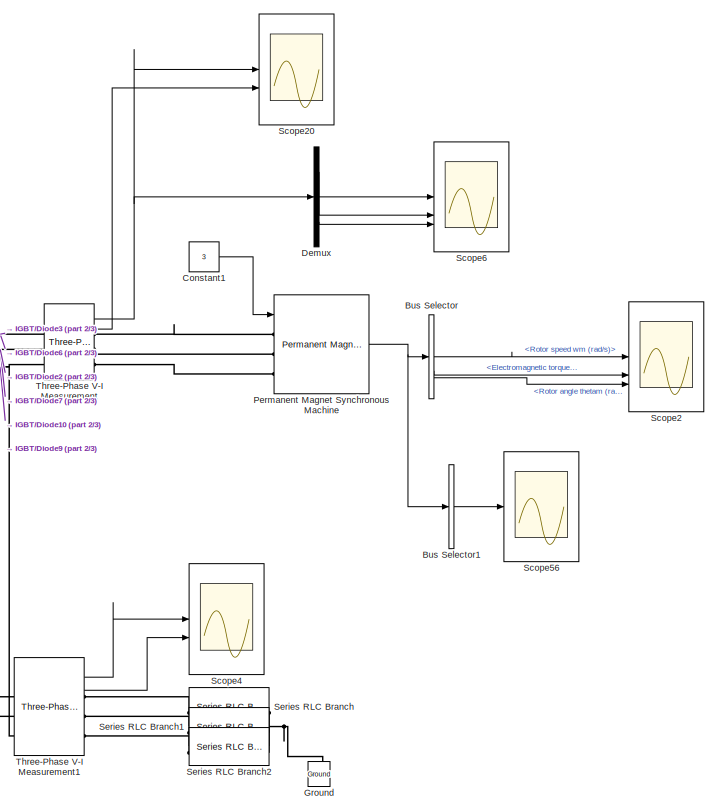
[diagram: root canvas - part 1/3, top right region]
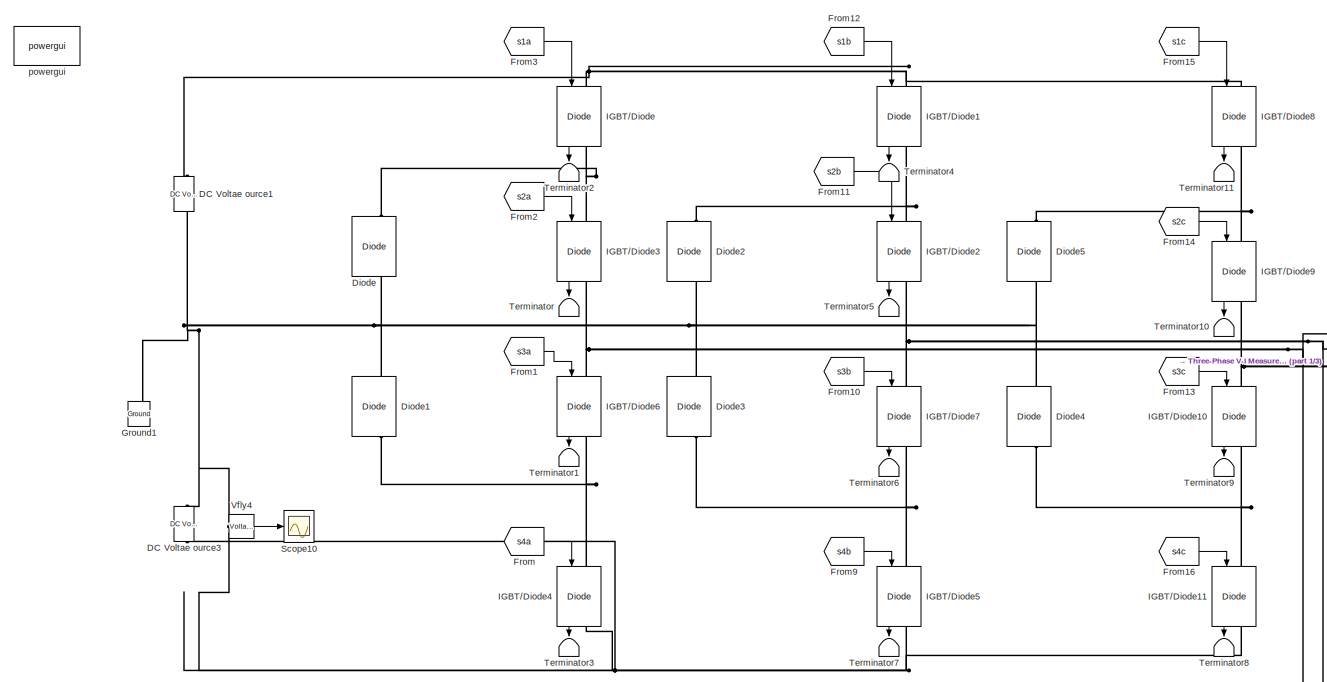
[diagram: root canvas - part 2/3, top left region]
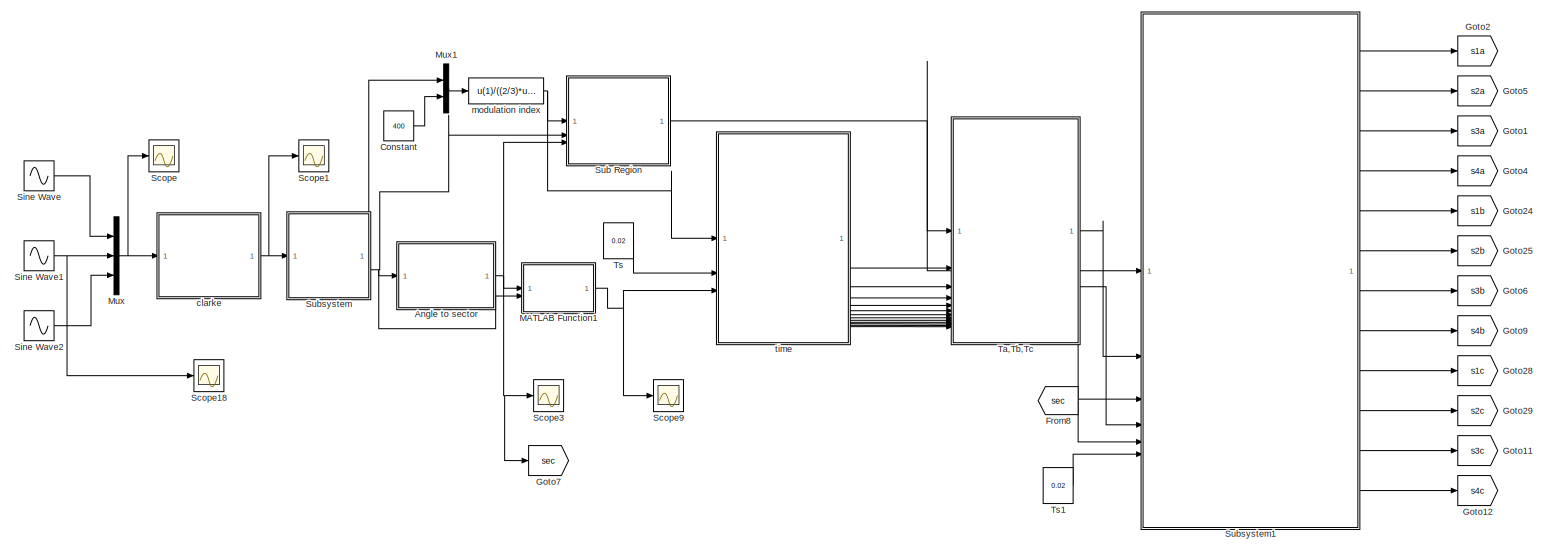
[diagram: root canvas - part 3/3, full width, bottom band]
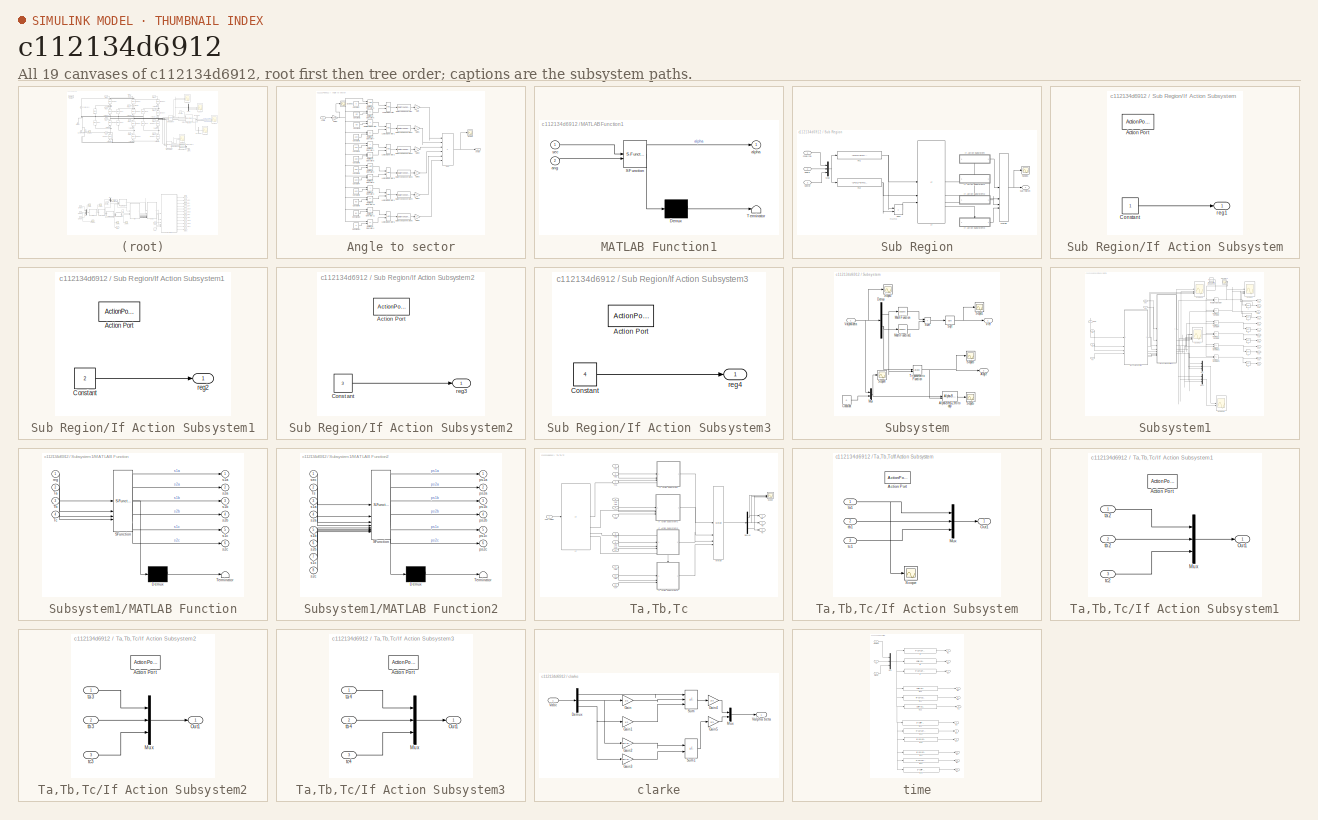
[diagram: thumbnail index - all 19 canvases of the model, root first then tree order]
MODEL slx_c112134d6912
KIND model
CONFIG AbsTol = auto
CONFIG EnableMultiTasking = on
CONFIG FixedStep = 1e-5
CONFIG MaxStep = auto
CONFIG MinStep = auto
CONFIG RelTol = 1e-4
CONFIG SampleTimeConstraint = Unconstrained
CONFIG SolverName = VariableStepAuto
CONFIG StartTime = 0.0
CONFIG StopTime = 0.3
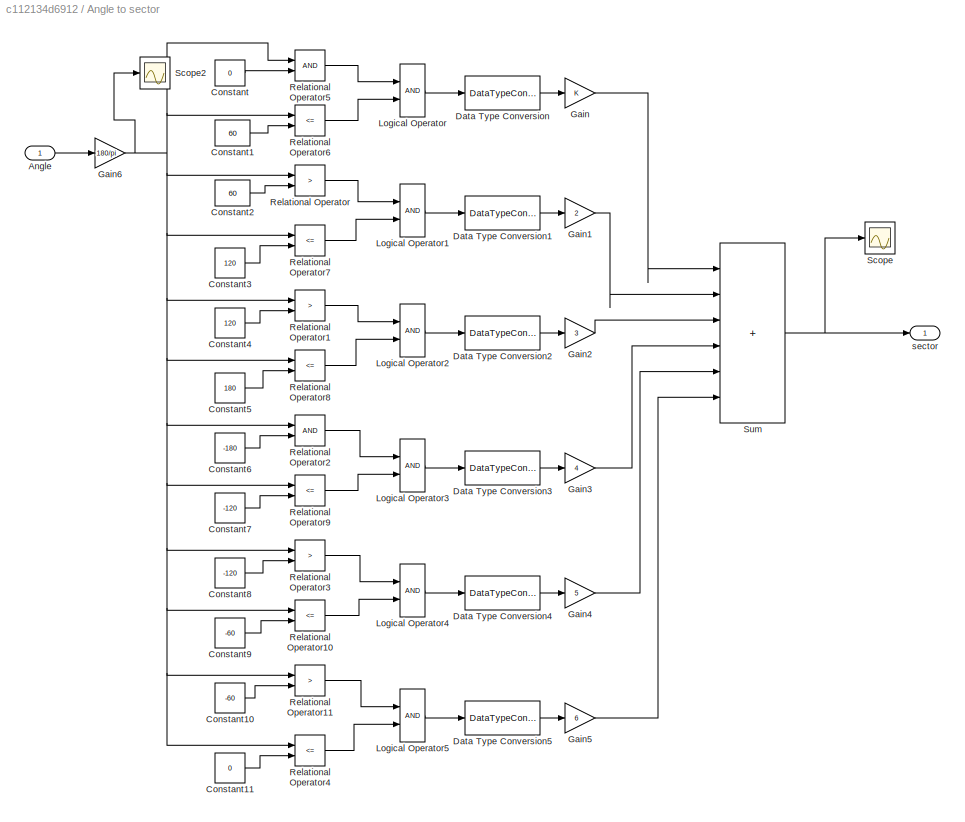
BLOCK [SubSystem] Angle to sector
BLOCK [Inport] Angle to sector/Angle
BLOCK [Constant] Angle to sector/Constant
  Value = 0
BLOCK [Constant] Angle to sector/Constant1
  Value = 60
BLOCK [Constant] Angle to sector/Constant10
  Value = -60
BLOCK [Constant] Angle to sector/Constant11
  Value = 0
BLOCK [Constant] Angle to sector/Constant2
  Value = 60
BLOCK [Constant] Angle to sector/Constant3
  Value = 120
BLOCK [Constant] Angle to sector/Constant4
  Value = 120
BLOCK [Constant] Angle to sector/Constant5
  Value = 180
BLOCK [Constant] Angle to sector/Constant6
  Value = -180
BLOCK [Constant] Angle to sector/Constant7
  Value = -120
BLOCK [Constant] Angle to sector/Constant8
  Value = -120
BLOCK [Constant] Angle to sector/Constant9
  Value = -60
BLOCK [DataTypeConversion] Angle to sector/Data Type Conversion
  RndMeth = Floor
  SaturateOnIntegerOverflow = off
BLOCK [DataTypeConversion] Angle to sector/Data Type Conversion1
  RndMeth = Floor
  SaturateOnIntegerOverflow = off
BLOCK [DataTypeConversion] Angle to sector/Data Type Conversion2
  RndMeth = Floor
  SaturateOnIntegerOverflow = off
BLOCK [DataTypeConversion] Angle to sector/Data Type Conversion3
  RndMeth = Floor
  SaturateOnIntegerOverflow = off
BLOCK [DataTypeConversion] Angle to sector/Data Type Conversion4
  RndMeth = Floor
  SaturateOnIntegerOverflow = off
BLOCK [DataTypeConversion] Angle to sector/Data Type Conversion5
  RndMeth = Floor
  SaturateOnIntegerOverflow = off
BLOCK [Gain] Angle to sector/Gain
BLOCK [Gain] Angle to sector/Gain1
  Gain = 2
BLOCK [Gain] Angle to sector/Gain2
  Gain = 3
BLOCK [Gain] Angle to sector/Gain3
  Gain = 4
BLOCK [Gain] Angle to sector/Gain4
  Gain = 5
BLOCK [Gain] Angle to sector/Gain5
  Gain = 6
BLOCK [Gain] Angle to sector/Gain6
  Gain = 180/pi
BLOCK [Logic] Angle to sector/Logical Operator
  AllPortsSameDT = off
  OutDataTypeStr = boolean
BLOCK [Logic] Angle to sector/Logical Operator1
  AllPortsSameDT = off
  OutDataTypeStr = boolean
BLOCK [Logic] Angle to sector/Logical Operator2
  AllPortsSameDT = off
  OutDataTypeStr = boolean
BLOCK [Logic] Angle to sector/Logical Operator3
  AllPortsSameDT = off
  OutDataTypeStr = boolean
BLOCK [Logic] Angle to sector/Logical Operator4
  AllPortsSameDT = off
  OutDataTypeStr = boolean
BLOCK [Logic] Angle to sector/Logical Operator5
  AllPortsSameDT = off
  OutDataTypeStr = boolean
BLOCK [RelationalOperator] Angle to sector/Relational Operator
  InputSameDT = off
  Operator = >
  OutDataTypeStr = boolean
BLOCK [RelationalOperator] Angle to sector/Relational Operator1
  InputSameDT = off
  Operator = >
  OutDataTypeStr = boolean
BLOCK [RelationalOperator] Angle to sector/Relational Operator10
  InputSameDT = off
  Operator = <=
  OutDataTypeStr = boolean
BLOCK [RelationalOperator] Angle to sector/Relational Operator11
  InputSameDT = off
  Operator = >
  OutDataTypeStr = boolean
BLOCK [RelationalOperator] Angle to sector/Relational Operator2
  InputSameDT = off
  OutDataTypeStr = boolean
BLOCK [RelationalOperator] Angle to sector/Relational Operator3
  InputSameDT = off
  Operator = >
  OutDataTypeStr = boolean
BLOCK [RelationalOperator] Angle to sector/Relational Operator4
  InputSameDT = off
  Operator = <=
  OutDataTypeStr = boolean
BLOCK [RelationalOperator] Angle to sector/Relational Operator5
  InputSameDT = off
  OutDataTypeStr = boolean
BLOCK [RelationalOperator] Angle to sector/Relational Operator6
  InputSameDT = off
  Operator = <=
  OutDataTypeStr = boolean
BLOCK [RelationalOperator] Angle to sector/Relational Operator7
  InputSameDT = off
  Operator = <=
  OutDataTypeStr = boolean
BLOCK [RelationalOperator] Angle to sector/Relational Operator8
  InputSameDT = off
  Operator = <=
  OutDataTypeStr = boolean
BLOCK [RelationalOperator] Angle to sector/Relational Operator9
  InputSameDT = off
  Operator = <=
  OutDataTypeStr = boolean
BLOCK [Scope] Angle to sector/Scope
  Floating = off
  NumInputPorts = 1
  ScopeSpecificationString = Simulink.scopes.TimeScopeBlockCfg('CurrentConfiguration', extmgr.ConfigurationSet(extmgr.Configuration('Core','General UI',true),extmgr.Configuration('Core','Source UI',true),extmgr.Configuration('Sources','WiredSimulink',true,'DataLoggingVariableName','ScopeData4'),extmgr.Configuration('Visuals','Time Domain',true,'SerializedDisplays',{struct('MinYLimReal','0.375','MaxYLimReal','6.625','YLabelRea...<+1415ch>
BLOCK [Scope] Angle to sector/Scope2
  Floating = off
  NumInputPorts = 1
  ScopeSpecificationString = Simulink.scopes.TimeScopeBlockCfg('CurrentConfiguration', extmgr.ConfigurationSet(extmgr.Configuration('Core','General UI',true),extmgr.Configuration('Core','Source UI',true),extmgr.Configuration('Sources','WiredSimulink',true,'DataLoggingVariableName','ScopeData1'),extmgr.Configuration('Visuals','Time Domain',true,'SerializedDisplays',{struct('MinYLimReal','-225.00000','MaxYLimReal','225.00000','...<+1430ch>
BLOCK [Sum] Angle to sector/Sum
  IconShape = rectangular
  Inputs = |++++++
BLOCK [Outport] Angle to sector/sector
BLOCK [BusSelector] Bus Selector
  OutputSignals = Rotor speed wm (rad/s),Electromagnetic torque Te (N*m),Rotor angle thetam (rad)
BLOCK [BusSelector] Bus Selector1
  OutputAsBus = on
  OutputSignals = Stator current is_a (A),Stator current is_b (A),Stator current is_c (A)
BLOCK [Constant] Constant
  Value = 400
BLOCK [Constant] Constant1
  Value = 3
BLOCK [Reference] DC Voltae ource1  REF=spsDCVoltageSourceLib/DC Voltage Source
  LibrarySourceBlock = sps_lib/Sources/DC Voltage Source
  NameLocation = right
  SourceBlock = spsDCVoltageSourceLib/DC Voltage Source
  SourceType = DC Voltage Source
BLOCK [Reference] DC Voltae ource3  REF=spsDCVoltageSourceLib/DC Voltage Source
  LibrarySourceBlock = sps_lib/Sources/DC Voltage Source
  NameLocation = right
  SourceBlock = spsDCVoltageSourceLib/DC Voltage Source
  SourceType = DC Voltage Source
BLOCK [Demux] Demux
  Outputs = 3
BLOCK [Reference] Diode  REF=spsDiodeLib/Diode
  LibrarySourceBlock = sps_lib/Power Electronics/Diode
  NameLocation = right
  SourceBlock = spsDiodeLib/Diode
  SourceType = Diode
BLOCK [Reference] Diode1  REF=spsDiodeLib/Diode
  LibrarySourceBlock = sps_lib/Power Electronics/Diode
  NameLocation = right
  SourceBlock = spsDiodeLib/Diode
  SourceType = Diode
BLOCK [Reference] Diode2  REF=spsDiodeLib/Diode
  LibrarySourceBlock = sps_lib/Power Electronics/Diode
  NameLocation = right
  SourceBlock = spsDiodeLib/Diode
  SourceType = Diode
BLOCK [Reference] Diode3  REF=spsDiodeLib/Diode
  LibrarySourceBlock = sps_lib/Power Electronics/Diode
  NameLocation = right
  SourceBlock = spsDiodeLib/Diode
  SourceType = Diode
BLOCK [Reference] Diode4  REF=spsDiodeLib/Diode
  LibrarySourceBlock = sps_lib/Power Electronics/Diode
  NameLocation = right
  SourceBlock = spsDiodeLib/Diode
  SourceType = Diode
BLOCK [Reference] Diode5  REF=spsDiodeLib/Diode
  LibrarySourceBlock = sps_lib/Power Electronics/Diode
  NameLocation = right
  SourceBlock = spsDiodeLib/Diode
  SourceType = Diode
BLOCK [From] From
  GotoTag = s4a
BLOCK [From] From1
  GotoTag = s3a
BLOCK [From] From10
  GotoTag = s3b
BLOCK [From] From11
  GotoTag = s2b
BLOCK [From] From12
  GotoTag = s1b
BLOCK [From] From13
  GotoTag = s3c
BLOCK [From] From14
  GotoTag = s2c
BLOCK [From] From15
  GotoTag = s1c
BLOCK [From] From16
  GotoTag = s4c
BLOCK [From] From2
  GotoTag = s2a
BLOCK [From] From3
  GotoTag = s1a
BLOCK [From] From8
  GotoTag = sec
BLOCK [From] From9
  GotoTag = s4b
BLOCK [Goto] Goto1
  GotoTag = s3a
BLOCK [Goto] Goto11
  GotoTag = s3c
BLOCK [Goto] Goto12
  GotoTag = s4c
BLOCK [Goto] Goto2
  GotoTag = s1a
BLOCK [Goto] Goto24
  GotoTag = s1b
BLOCK [Goto] Goto25
  GotoTag = s2b
BLOCK [Goto] Goto28
  GotoTag = s1c
BLOCK [Goto] Goto29
  GotoTag = s2c
BLOCK [Goto] Goto4
  GotoTag = s4a
BLOCK [Goto] Goto5
  GotoTag = s2a
BLOCK [Goto] Goto6
  GotoTag = s3b
BLOCK [Goto] Goto7
  GotoTag = sec
BLOCK [Goto] Goto9
  GotoTag = s4b
BLOCK [Reference] Ground  REF=spsGroundLib/Ground
  LibrarySourceBlock = sps_lib/Utilities/Ground
  NameLocation = right
  SourceBlock = spsGroundLib/Ground
  SourceType = Ground
BLOCK [Reference] Ground1  REF=spsGroundLib/Ground
  LibrarySourceBlock = sps_lib/Utilities/Ground
  NameLocation = right
  SourceBlock = spsGroundLib/Ground
  SourceType = Ground
BLOCK [Reference] IGBT//Diode  REF=spsIGBTDiodeLib/IGBT//Diode
  LibrarySourceBlock = sps_lib/Power Electronics/IGBT//Diode
  NameLocation = right
  SourceBlock = spsIGBTDiodeLib/IGBT//Diode
  SourceType = IGBT/Diode
BLOCK [Reference] IGBT//Diode1  REF=spsIGBTDiodeLib/IGBT//Diode
  LibrarySourceBlock = sps_lib/Power Electronics/IGBT//Diode
  NameLocation = right
  SourceBlock = spsIGBTDiodeLib/IGBT//Diode
  SourceType = IGBT/Diode
BLOCK [Reference] IGBT//Diode10  REF=spsIGBTDiodeLib/IGBT//Diode
  LibrarySourceBlock = sps_lib/Power Electronics/IGBT//Diode
  NameLocation = right
  SourceBlock = spsIGBTDiodeLib/IGBT//Diode
  SourceType = IGBT/Diode
BLOCK [Reference] IGBT//Diode11  REF=spsIGBTDiodeLib/IGBT//Diode
  LibrarySourceBlock = sps_lib/Power Electronics/IGBT//Diode
  NameLocation = right
  SourceBlock = spsIGBTDiodeLib/IGBT//Diode
  SourceType = IGBT/Diode
BLOCK [Reference] IGBT//Diode2  REF=spsIGBTDiodeLib/IGBT//Diode
  LibrarySourceBlock = sps_lib/Power Electronics/IGBT//Diode
  NameLocation = right
  SourceBlock = spsIGBTDiodeLib/IGBT//Diode
  SourceType = IGBT/Diode
BLOCK [Reference] IGBT//Diode3  REF=spsIGBTDiodeLib/IGBT//Diode
  LibrarySourceBlock = sps_lib/Power Electronics/IGBT//Diode
  NameLocation = right
  SourceBlock = spsIGBTDiodeLib/IGBT//Diode
  SourceType = IGBT/Diode
BLOCK [Reference] IGBT//Diode4  REF=spsIGBTDiodeLib/IGBT//Diode
  LibrarySourceBlock = sps_lib/Power Electronics/IGBT//Diode
  NameLocation = right
  SourceBlock = spsIGBTDiodeLib/IGBT//Diode
  SourceType = IGBT/Diode
BLOCK [Reference] IGBT//Diode5  REF=spsIGBTDiodeLib/IGBT//Diode
  LibrarySourceBlock = sps_lib/Power Electronics/IGBT//Diode
  NameLocation = right
  SourceBlock = spsIGBTDiodeLib/IGBT//Diode
  SourceType = IGBT/Diode
BLOCK [Reference] IGBT//Diode6  REF=spsIGBTDiodeLib/IGBT//Diode
  LibrarySourceBlock = sps_lib/Power Electronics/IGBT//Diode
  NameLocation = right
  SourceBlock = spsIGBTDiodeLib/IGBT//Diode
  SourceType = IGBT/Diode
BLOCK [Reference] IGBT//Diode7  REF=spsIGBTDiodeLib/IGBT//Diode
  LibrarySourceBlock = sps_lib/Power Electronics/IGBT//Diode
  NameLocation = right
  SourceBlock = spsIGBTDiodeLib/IGBT//Diode
  SourceType = IGBT/Diode
BLOCK [Reference] IGBT//Diode8  REF=spsIGBTDiodeLib/IGBT//Diode
  LibrarySourceBlock = sps_lib/Power Electronics/IGBT//Diode
  NameLocation = right
  SourceBlock = spsIGBTDiodeLib/IGBT//Diode
  SourceType = IGBT/Diode
BLOCK [Reference] IGBT//Diode9  REF=spsIGBTDiodeLib/IGBT//Diode
  LibrarySourceBlock = sps_lib/Power Electronics/IGBT//Diode
  NameLocation = right
  SourceBlock = spsIGBTDiodeLib/IGBT//Diode
  SourceType = IGBT/Diode
BLOCK [SubSystem] MATLAB Function1
  ErrorFcn = Stateflow.Translate.translate
  PermitHierarchicalResolution = ExplicitOnly
  SFBlockType = MATLAB Function
  TreatAsAtomicUnit = on
BLOCK [Demux] MATLAB Function1/ Demux 
  Outputs = 1
BLOCK [S-Function] MATLAB Function1/ SFunction 
  EnableBusSupport = on
  FunctionName = sf_sfun
  PortCounts = [2 2]
  SFcnIsStateOwnerBlock = off
  SFunctionDeploymentMode = off
  Tag = Stateflow S-Function 1
BLOCK [Terminator] MATLAB Function1/ Terminator 
BLOCK [Outport] MATLAB Function1/alpha
BLOCK [Inport] MATLAB Function1/ang
  Port = 2
BLOCK [Inport] MATLAB Function1/sec
BLOCK [Mux] Mux
  DisplayOption = bar
  Inputs = 3
BLOCK [Mux] Mux1
  DisplayOption = bar
  Inputs = 2
BLOCK [Reference] Permanent Magnet Synchronous Machine  REF=spsPermanentMagnetSynchronousMachineLib/Permanent Magnet
Synchronous Machine
  LibrarySourceBlock = sps_lib/Electrical Machines/Permanent Magnet\nSynchronous Machine
  SourceBlock = spsPermanentMagnetSynchronousMachineLib/Permanent Magnet\nSynchronous Machine
  SourceType = Permanent Magnet Synchronous Machine
BLOCK [Scope] Scope
  Floating = off
  NumInputPorts = 1
  ScopeSpecificationString = Simulink.scopes.TimeScopeBlockCfg('CurrentConfiguration', extmgr.ConfigurationSet(extmgr.Configuration('Core','General UI',true),extmgr.Configuration('Core','Source UI',true),extmgr.Configuration('Sources','WiredSimulink',true),extmgr.Configuration('Visuals','Time Domain',true,'SerializedDisplays',{struct('MinYLimReal','-287.5','MaxYLimReal','287.5','YLabelReal','','MinYLimMag',' 0.00000','MaxYLim...<+1397ch>
BLOCK [Scope] Scope1
  Floating = off
  NumInputPorts = 1
  ScopeSpecificationString = Simulink.scopes.TimeScopeBlockCfg('CurrentConfiguration', extmgr.ConfigurationSet(extmgr.Configuration('Core','General UI',true),extmgr.Configuration('Core','Source UI',true),extmgr.Configuration('Sources','WiredSimulink',true,'DataLoggingVariableName','ScopeData1'),extmgr.Configuration('Visuals','Time Domain',true,'SerializedDisplays',{struct('MinYLimReal','-287.5','MaxYLimReal','287.5','YLabelRe...<+1420ch>
BLOCK [Scope] Scope10
  Floating = off
  NumInputPorts = 1
  ScopeSpecificationString = Simulink.scopes.TimeScopeBlockCfg('CurrentConfiguration', extmgr.ConfigurationSet(extmgr.Configuration('Core','General UI',true),extmgr.Configuration('Core','Source UI',true),extmgr.Configuration('Sources','WiredSimulink',true,'DataLoggingVariableName','ScopeData1'),extmgr.Configuration('Visuals','Time Domain',true,'SerializedDisplays',{struct('MinYLimReal','200.00000','MaxYLimReal','400.00000','Y...<+1430ch>
BLOCK [Scope] Scope18
  Floating = off
  NumInputPorts = 1
  ScopeSpecificationString = Simulink.scopes.TimeScopeBlockCfg('CurrentConfiguration', extmgr.ConfigurationSet(extmgr.Configuration('Core','General UI',true),extmgr.Configuration('Core','Source UI',true),extmgr.Configuration('Sources','WiredSimulink',true,'DataLoggingVariableName','ScopeData2'),extmgr.Configuration('Visuals','Time Domain',true,'SerializedDisplays',{struct('MinYLimReal','-275.00000','MaxYLimReal','275.00000','...<+1435ch>
BLOCK [Scope] Scope2
  Floating = off
  NumInputPorts = 3
  ScopeSpecificationString = Simulink.scopes.TimeScopeBlockCfg('CurrentConfiguration', extmgr.ConfigurationSet(extmgr.Configuration('Core','General UI',true),extmgr.Configuration('Core','Source UI',true),extmgr.Configuration('Sources','WiredSimulink',true,'DataLoggingVariableName','ScopeData1','DataLogging',true),extmgr.Configuration('Visuals','Time Domain',true,'SerializedDisplays',{struct('MinYLimReal','-83.06003','MaxYLimR...<+2822ch>
BLOCK [Scope] Scope20
  Floating = off
  NumInputPorts = 2
  ScopeSpecificationString = Simulink.scopes.TimeScopeBlockCfg('CurrentConfiguration', extmgr.ConfigurationSet(extmgr.Configuration('Core','General UI',true),extmgr.Configuration('Core','Source UI',true),extmgr.Configuration('Sources','WiredSimulink',true,'DataLoggingVariableName','ScopeData6','DataLogging',true),extmgr.Configuration('Visuals','Time Domain',true,'SerializedDisplays',{struct('MinYLimReal','-249.91183','MaxYLim...<+2274ch>
BLOCK [Scope] Scope3
  Floating = off
  NumInputPorts = 1
  ScopeSpecificationString = Simulink.scopes.TimeScopeBlockCfg('CurrentConfiguration', extmgr.ConfigurationSet(extmgr.Configuration('Core','General UI',true),extmgr.Configuration('Core','Source UI',true),extmgr.Configuration('Sources','WiredSimulink',true,'DataLoggingVariableName','ScopeData4','DataLoggingSaveFormat','Array','DataLoggingDecimation','1'),extmgr.Configuration('Visuals','Time Domain',true,'SerializedDisplays',{s...<+1468ch>
BLOCK [Scope] Scope4
  Floating = off
  NumInputPorts = 2
  ScopeSpecificationString = Simulink.scopes.TimeScopeBlockCfg('CurrentConfiguration', extmgr.ConfigurationSet(extmgr.Configuration('Core','General UI',true),extmgr.Configuration('Core','Source UI',true),extmgr.Configuration('Sources','WiredSimulink',true,'DataLoggingVariableName','ScopeData1'),extmgr.Configuration('Visuals','Time Domain',true,'SerializedDisplays',{struct('MinYLimReal','-374.86555','MaxYLimReal','374.86321','...<+2261ch>
BLOCK [Scope] Scope56
  Floating = off
  NumInputPorts = 1
  ScopeSpecificationString = Simulink.scopes.TimeScopeBlockCfg('CurrentConfiguration', extmgr.ConfigurationSet(extmgr.Configuration('Core','General UI',true),extmgr.Configuration('Core','Source UI',true),extmgr.Configuration('Sources','WiredSimulink',true,'DataLoggingVariableName','ScopeData3','DataLogging',true),extmgr.Configuration('Visuals','Time Domain',true,'SerializedDisplays',{struct('MinYLimReal','-23.51586','MaxYLimR...<+1556ch>
BLOCK [Scope] Scope6
  Floating = off
  NumInputPorts = 3
  ScopeSpecificationString = Simulink.scopes.TimeScopeBlockCfg('CurrentConfiguration', extmgr.ConfigurationSet(extmgr.Configuration('Core','General UI',true),extmgr.Configuration('Core','Source UI',true),extmgr.Configuration('Sources','WiredSimulink',true,'DataLoggingVariableName','ScopeData2','DataLogging',true),extmgr.Configuration('Visuals','Time Domain',true,'SerializedDisplays',{struct('MinYLimReal','-499.78572','MaxYLim...<+2771ch>
BLOCK [Scope] Scope9
  Floating = off
  NumInputPorts = 1
  ScopeSpecificationString = Simulink.scopes.TimeScopeBlockCfg('CurrentConfiguration', extmgr.ConfigurationSet(extmgr.Configuration('Core','General UI',true),extmgr.Configuration('Core','Source UI',true),extmgr.Configuration('Sources','WiredSimulink',true,'DataLoggingVariableName','ScopeData5','DataLoggingSaveFormat','Array','DataLoggingDecimation','1'),extmgr.Configuration('Visuals','Time Domain',true,'SerializedDisplays',{s...<+1481ch>
BLOCK [Reference] Series RLC Branch  REF=spsSeriesRLCBranchLib/Series RLC Branch
  LibrarySourceBlock = sps_lib/Passives/Series RLC Branch
  SourceBlock = spsSeriesRLCBranchLib/Series RLC Branch
  SourceType = Series RLC Branch
BLOCK [Reference] Series RLC Branch1  REF=spsSeriesRLCBranchLib/Series RLC Branch
  LibrarySourceBlock = sps_lib/Passives/Series RLC Branch
  SourceBlock = spsSeriesRLCBranchLib/Series RLC Branch
  SourceType = Series RLC Branch
BLOCK [Reference] Series RLC Branch2  REF=spsSeriesRLCBranchLib/Series RLC Branch
  LibrarySourceBlock = sps_lib/Passives/Series RLC Branch
  SourceBlock = spsSeriesRLCBranchLib/Series RLC Branch
  SourceType = Series RLC Branch
BLOCK [Sin] Sine Wave
  Amplitude = 230
  Frequency = 2*pi*50
  SampleTime = 0
BLOCK [Sin] Sine Wave1
  Amplitude = 230
  Frequency = 2*pi*50
  Phase = 4*pi/3
  SampleTime = 0
BLOCK [Sin] Sine Wave2
  Amplitude = 230
  Frequency = 2*pi*50
  Phase = 2*pi/3
  SampleTime = 0
BLOCK [SubSystem] Sub Region
BLOCK [If] Sub Region/If
  ElseIfExpressions = (u1 < 0.5)&(u2 < 0.5)&(u3>0.5),(u1 > 0.5),(u2 > 0.5)
  IfExpression = (u1 < 0.5) & (u2 < 0.5) & (u3 < 0.5)
  NumInputs = 3
  ShowElse = off
BLOCK [SubSystem] Sub Region/If Action Subsystem
  TreatAsAtomicUnit = on
BLOCK [ActionPort] Sub Region/If Action Subsystem/Action Port
  ActionPortLabel = if((u1 < 0.5) & (u2 < 0.5) & (u3 < 0.5))
BLOCK [Constant] Sub Region/If Action Subsystem/Constant
BLOCK [Outport] Sub Region/If Action Subsystem/reg1
BLOCK [SubSystem] Sub Region/If Action Subsystem1
  TreatAsAtomicUnit = on
BLOCK [ActionPort] Sub Region/If Action Subsystem1/Action Port
  ActionPortLabel = elseif((u1 < 0.5)&(u2 < 0.5)&(u3>0.5))
BLOCK [Constant] Sub Region/If Action Subsystem1/Constant
  Value = 2
BLOCK [Outport] Sub Region/If Action Subsystem1/reg2
BLOCK [SubSystem] Sub Region/If Action Subsystem2
  TreatAsAtomicUnit = on
BLOCK [ActionPort] Sub Region/If Action Subsystem2/Action Port
  ActionPortLabel = elseif((u1 > 0.5))
BLOCK [Constant] Sub Region/If Action Subsystem2/Constant
  Value = 3
BLOCK [Outport] Sub Region/If Action Subsystem2/reg3
BLOCK [SubSystem] Sub Region/If Action Subsystem3
  TreatAsAtomicUnit = on
BLOCK [ActionPort] Sub Region/If Action Subsystem3/Action Port
  ActionPortLabel = elseif((u2 > 0.5))
BLOCK [Constant] Sub Region/If Action Subsystem3/Constant
  Value = 4
BLOCK [Outport] Sub Region/If Action Subsystem3/reg4
BLOCK [Merge] Sub Region/Merge
  Inputs = 4
BLOCK [Mux] Sub Region/Mux
  DisplayOption = bar
  Inputs = 3
BLOCK [Scope] Sub Region/Scope1
  Floating = off
  NumInputPorts = 1
  ScopeSpecificationString = Simulink.scopes.TimeScopeBlockCfg('CurrentConfiguration', extmgr.ConfigurationSet(extmgr.Configuration('Core','General UI',true),extmgr.Configuration('Core','Source UI',true),extmgr.Configuration('Sources','WiredSimulink',true,'DataLoggingVariableName','ScopeData3'),extmgr.Configuration('Visuals','Time Domain',true,'SerializedDisplays',{struct('MinYLimReal','1.75','MaxYLimReal','4.25','YLabelReal'...<+1409ch>
BLOCK [Sum] Sub Region/Sum
  IconShape = rectangular
  Inputs = |++
BLOCK [Inport] Sub Region/angle
  Port = 2
BLOCK [Fcn] Sub Region/m1
  Expr = (2*u(1)*sin((u(3)*(pi/3))-u(2)))/sqrt(3)
BLOCK [Fcn] Sub Region/m2
  Expr = (2*u(1)*sin(u(2)-((u(3)-1)*(pi/3))))/sqrt(3)
BLOCK [Inport] Sub Region/mod.ind.
BLOCK [Inport] Sub Region/sector
  Port = 3
BLOCK [Outport] Sub Region/sub region
BLOCK [SubSystem] Subsystem
BLOCK [Reference] Subsystem/Alpha-Beta-Zero to dq0  REF=spsAlphaBetaZerotodq0Lib/Alpha-Beta-Zero
to dq0
  LibrarySourceBlock = sps_lib/Control/Alpha-Beta-Zero\nto dq0
  SourceBlock = spsAlphaBetaZerotodq0Lib/Alpha-Beta-Zero\nto dq0
  SourceType = Alpha-Beta-Zero to dq0 Transformation
BLOCK [Outport] Subsystem/Angle
  Port = 2
BLOCK [Constant] Subsystem/Constant
  Value = 0
BLOCK [Demux] Subsystem/Demux
  Outputs = 2
BLOCK [Math] Subsystem/Math Function
  Operator = square
  SignedPower = on
BLOCK [Math] Subsystem/Math Function1
  Operator = square
  SignedPower = on
BLOCK [Mux] Subsystem/Mux
  DisplayOption = bar
  Inputs = 2
BLOCK [Scope] Subsystem/Scope1
  Floating = off
  NumInputPorts = 1
  ScopeSpecificationString = Simulink.scopes.TimeScopeBlockCfg('CurrentConfiguration', extmgr.ConfigurationSet(extmgr.Configuration('Core','General UI',true),extmgr.Configuration('Core','Source UI',true),extmgr.Configuration('Sources','WiredSimulink',true,'DataLoggingVariableName','ScopeData2','DataLoggingSaveFormat','Array','DataLoggingDecimation','1'),extmgr.Configuration('Visuals','Time Domain',true,'SerializedDisplays',{s...<+1580ch>
BLOCK [Scope] Subsystem/Scope2
  Floating = off
  NumInputPorts = 1
  ScopeSpecificationString = Simulink.scopes.TimeScopeBlockCfg('CurrentConfiguration', extmgr.ConfigurationSet(extmgr.Configuration('Core','General UI',true),extmgr.Configuration('Core','Source UI',true),extmgr.Configuration('Sources','WiredSimulink',true,'DataLoggingVariableName','ScopeData1','DataLoggingSaveFormat','Array','DataLoggingDecimation','1'),extmgr.Configuration('Visuals','Time Domain',true,'SerializedDisplays',{s...<+1490ch>
BLOCK [Scope] Subsystem/Scope3
  Floating = off
  NumInputPorts = 1
  ScopeSpecificationString = Simulink.scopes.TimeScopeBlockCfg('CurrentConfiguration', extmgr.ConfigurationSet(extmgr.Configuration('Core','General UI',true),extmgr.Configuration('Core','Source UI',true),extmgr.Configuration('Sources','WiredSimulink',true,'DataLoggingVariableName','ScopeData3','DataLoggingSaveFormat','Array','DataLoggingDecimation','1'),extmgr.Configuration('Visuals','Time Domain',true,'SerializedDisplays',{s...<+1512ch>
BLOCK [Scope] Subsystem/Scope4
  Floating = off
  NumInputPorts = 1
  ScopeSpecificationString = Simulink.scopes.TimeScopeBlockCfg('CurrentConfiguration', extmgr.ConfigurationSet(extmgr.Configuration('Core','General UI',true),extmgr.Configuration('Core','Source UI',true),extmgr.Configuration('Sources','WiredSimulink',true,'DataLoggingVariableName','ScopeData1','DataLoggingLimitDataPoints',true,'DataLoggingSaveFormat','Array','DataLoggingDecimation','1','DataLoggingDecimateData',true),extmgr.C...<+1566ch>
BLOCK [Scope] Subsystem/Scope5
  Floating = off
  NumInputPorts = 1
  ScopeSpecificationString = Simulink.scopes.TimeScopeBlockCfg('CurrentConfiguration', extmgr.ConfigurationSet(extmgr.Configuration('Core','General UI',true),extmgr.Configuration('Core','Source UI',true),extmgr.Configuration('Sources','WiredSimulink',true,'DataLoggingVariableName','ScopeData1'),extmgr.Configuration('Visuals','Time Domain',true,'SerializedDisplays',{struct('MinYLimReal','-27.5','MaxYLimReal','247.5','YLabelRea...<+1475ch>
BLOCK [Sqrt] Subsystem/Sqrt
BLOCK [Sum] Subsystem/Sum
  IconShape = rectangular
  Inputs = |++
BLOCK [Trigonometry] Subsystem/Trigonometric Function
  Operator = atan2
BLOCK [Inport] Subsystem/Valpha-beta
BLOCK [Outport] Subsystem/Vref
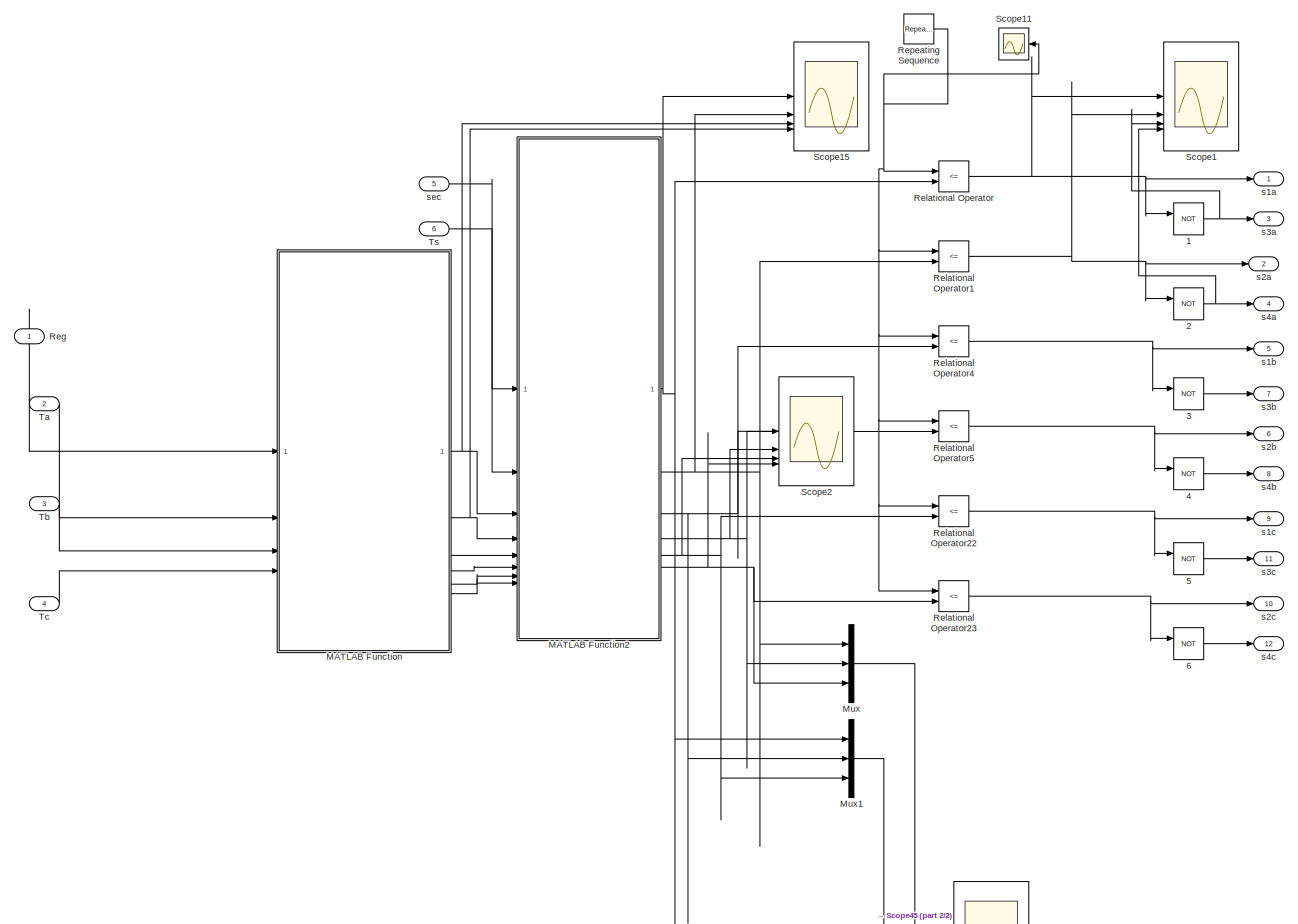
[diagram: Subsystem1 - part 1/2, most of the canvas]
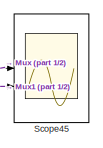
[diagram: Subsystem1 - part 2/2, bottom right region]
BLOCK [SubSystem] Subsystem1
BLOCK [Logic] Subsystem1/1
  AllPortsSameDT = off
  Operator = NOT
  OutDataTypeStr = boolean
BLOCK [Logic] Subsystem1/2
  AllPortsSameDT = off
  Operator = NOT
  OutDataTypeStr = boolean
BLOCK [Logic] Subsystem1/3
  AllPortsSameDT = off
  Operator = NOT
  OutDataTypeStr = boolean
BLOCK [Logic] Subsystem1/4
  AllPortsSameDT = off
  Operator = NOT
  OutDataTypeStr = boolean
BLOCK [Logic] Subsystem1/5
  AllPortsSameDT = off
  Operator = NOT
  OutDataTypeStr = boolean
BLOCK [Logic] Subsystem1/6
  AllPortsSameDT = off
  Operator = NOT
  OutDataTypeStr = boolean
BLOCK [SubSystem] Subsystem1/MATLAB Function
  ErrorFcn = Stateflow.Translate.translate
  PermitHierarchicalResolution = ExplicitOnly
  SFBlockType = MATLAB Function
  TreatAsAtomicUnit = on
BLOCK [Demux] Subsystem1/MATLAB Function/ Demux 
  Outputs = 1
BLOCK [S-Function] Subsystem1/MATLAB Function/ SFunction 
  EnableBusSupport = on
  FunctionName = sf_sfun
  PortCounts = [4 7]
  SFcnIsStateOwnerBlock = off
  SFunctionDeploymentMode = off
  Tag = Stateflow S-Function 2
BLOCK [Terminator] Subsystem1/MATLAB Function/ Terminator 
BLOCK [Inport] Subsystem1/MATLAB Function/Ta
  Port = 2
BLOCK [Inport] Subsystem1/MATLAB Function/Tb
  Port = 3
BLOCK [Inport] Subsystem1/MATLAB Function/Tc
  Port = 4
BLOCK [Inport] Subsystem1/MATLAB Function/reg
BLOCK [Outport] Subsystem1/MATLAB Function/s1a
BLOCK [Outport] Subsystem1/MATLAB Function/s1b
  Port = 3
BLOCK [Outport] Subsystem1/MATLAB Function/s1c
  Port = 5
BLOCK [Outport] Subsystem1/MATLAB Function/s2a
  Port = 2
BLOCK [Outport] Subsystem1/MATLAB Function/s2b
  Port = 4
BLOCK [Outport] Subsystem1/MATLAB Function/s2c
  Port = 6
BLOCK [SubSystem] Subsystem1/MATLAB Function2
  ErrorFcn = Stateflow.Translate.translate
  PermitHierarchicalResolution = ExplicitOnly
  SFBlockType = MATLAB Function
  TreatAsAtomicUnit = on
BLOCK [Demux] Subsystem1/MATLAB Function2/ Demux 
  Outputs = 1
BLOCK [S-Function] Subsystem1/MATLAB Function2/ SFunction 
  EnableBusSupport = on
  FunctionName = sf_sfun
  PortCounts = [8 7]
  SFcnIsStateOwnerBlock = off
  SFunctionDeploymentMode = off
  Tag = Stateflow S-Function 3
BLOCK [Terminator] Subsystem1/MATLAB Function2/ Terminator 
BLOCK [Inport] Subsystem1/MATLAB Function2/Ts
  Port = 2
BLOCK [Outport] Subsystem1/MATLAB Function2/ps1a
BLOCK [Outport] Subsystem1/MATLAB Function2/ps1b
  Port = 3
BLOCK [Outport] Subsystem1/MATLAB Function2/ps1c
  Port = 5
BLOCK [Outport] Subsystem1/MATLAB Function2/ps2a
  Port = 2
BLOCK [Outport] Subsystem1/MATLAB Function2/ps2b
  Port = 4
BLOCK [Outport] Subsystem1/MATLAB Function2/ps2c
  Port = 6
BLOCK [Inport] Subsystem1/MATLAB Function2/s1a
  Port = 3
BLOCK [Inport] Subsystem1/MATLAB Function2/s1b
  Port = 5
BLOCK [Inport] Subsystem1/MATLAB Function2/s1c
  Port = 7
BLOCK [Inport] Subsystem1/MATLAB Function2/s2a
  Port = 4
BLOCK [Inport] Subsystem1/MATLAB Function2/s2b
  Port = 6
BLOCK [Inport] Subsystem1/MATLAB Function2/s2c
  Port = 8
BLOCK [Inport] Subsystem1/MATLAB Function2/sec
BLOCK [Mux] Subsystem1/Mux
  DisplayOption = bar
  Inputs = 3
BLOCK [Mux] Subsystem1/Mux1
  DisplayOption = bar
  Inputs = 3
BLOCK [Inport] Subsystem1/Reg
  NameLocation = right
BLOCK [RelationalOperator] Subsystem1/Relational Operator
  InputSameDT = off
  Operator = <=
  OutDataTypeStr = boolean
BLOCK [RelationalOperator] Subsystem1/Relational Operator1
  InputSameDT = off
  Operator = <=
  OutDataTypeStr = boolean
BLOCK [RelationalOperator] Subsystem1/Relational Operator22
  InputSameDT = off
  Operator = <=
  OutDataTypeStr = boolean
BLOCK [RelationalOperator] Subsystem1/Relational Operator23
  InputSameDT = off
  Operator = <=
  OutDataTypeStr = boolean
BLOCK [RelationalOperator] Subsystem1/Relational Operator4
  InputSameDT = off
  Operator = <=
  OutDataTypeStr = boolean
BLOCK [RelationalOperator] Subsystem1/Relational Operator5
  InputSameDT = off
  Operator = <=
  OutDataTypeStr = boolean
BLOCK [Reference] Subsystem1/Repeating Sequence  REF=simulink/Sources/Repeating
Sequence
  SourceBlock = simulink/Sources/Repeating\nSequence
  SourceType = Repeating table
BLOCK [Scope] Subsystem1/Scope1
  Floating = off
  NumInputPorts = 4
  ScopeSpecificationString = Simulink.scopes.TimeScopeBlockCfg('CurrentConfiguration', extmgr.ConfigurationSet(extmgr.Configuration('Core','General UI',true),extmgr.Configuration('Core','Source UI',true),extmgr.Configuration('Sources','WiredSimulink',true,'DataLoggingVariableName','ScopeData1'),extmgr.Configuration('Visuals','Time Domain',true,'SerializedDisplays',{struct('MinYLimReal','-0.125','MaxYLimReal','1.125','YLabelRe...<+3484ch>
BLOCK [Scope] Subsystem1/Scope11
  Floating = off
  NameLocation = top
  NumInputPorts = 1
  ScopeSpecificationString = Simulink.scopes.TimeScopeBlockCfg('CurrentConfiguration', extmgr.ConfigurationSet(extmgr.Configuration('Core','General UI',true),extmgr.Configuration('Core','Source UI',true),extmgr.Configuration('Sources','WiredSimulink',true,'DataLoggingVariableName','ScopeData17','DataLoggingSaveFormat','Array','DataLoggingDecimation','1'),extmgr.Configuration('Visuals','Time Domain',true,'SerializedDisplays',{...<+1509ch>
BLOCK [Scope] Subsystem1/Scope15
  Floating = off
  NumInputPorts = 4
  ScopeSpecificationString = Simulink.scopes.TimeScopeBlockCfg('CurrentConfiguration', extmgr.ConfigurationSet(extmgr.Configuration('Core','General UI',true),extmgr.Configuration('Core','Source UI',true),extmgr.Configuration('Sources','WiredSimulink',true,'DataLoggingVariableName','ScopeData1'),extmgr.Configuration('Visuals','Time Domain',true,'SerializedDisplays',{struct('MinYLimReal','-0.00124','MaxYLimReal','0.0112','YLabe...<+3564ch>
BLOCK [Scope] Subsystem1/Scope2
  Floating = off
  NumInputPorts = 4
  ScopeSpecificationString = Simulink.scopes.TimeScopeBlockCfg('CurrentConfiguration', extmgr.ConfigurationSet(extmgr.Configuration('Core','General UI',true),extmgr.Configuration('Core','Source UI',true),extmgr.Configuration('Sources','WiredSimulink',true,'DataLoggingVariableName','ScopeData1'),extmgr.Configuration('Visuals','Time Domain',true,'SerializedDisplays',{struct('MinYLimReal','-0.00124','MaxYLimReal','0.0112','YLabe...<+3540ch>
BLOCK [Scope] Subsystem1/Scope45
  Floating = off
  NumInputPorts = 4
  ScopeSpecificationString = Simulink.scopes.TimeScopeBlockCfg('CurrentConfiguration', extmgr.ConfigurationSet(extmgr.Configuration('Core','General UI',true),extmgr.Configuration('Core','Source UI',true),extmgr.Configuration('Sources','WiredSimulink',true,'DataLoggingVariableName','ScopeData2'),extmgr.Configuration('Visuals','Time Domain',true,'SerializedDisplays',{struct('MinYLimReal','-0.0012','MaxYLimReal','0.01124','YLabe...<+3615ch>
BLOCK [Inport] Subsystem1/Ta
  Port = 2
BLOCK [Inport] Subsystem1/Tb
  Port = 3
BLOCK [Inport] Subsystem1/Tc
  Port = 4
BLOCK [Inport] Subsystem1/Ts
  Port = 6
BLOCK [Outport] Subsystem1/s1a
BLOCK [Outport] Subsystem1/s1b
  Port = 5
BLOCK [Outport] Subsystem1/s1c
  Port = 9
BLOCK [Outport] Subsystem1/s2a
  Port = 2
BLOCK [Outport] Subsystem1/s2b
  Port = 6
BLOCK [Outport] Subsystem1/s2c
  Port = 10
BLOCK [Outport] Subsystem1/s3a
  Port = 3
BLOCK [Outport] Subsystem1/s3b
  Port = 7
BLOCK [Outport] Subsystem1/s3c
  Port = 11
BLOCK [Outport] Subsystem1/s4a
  Port = 4
BLOCK [Outport] Subsystem1/s4b
  Port = 8
BLOCK [Outport] Subsystem1/s4c
  Port = 12
BLOCK [Inport] Subsystem1/sec
  Port = 5
BLOCK [SubSystem] Ta,Tb,Tc
BLOCK [Demux] Ta,Tb,Tc/Demux
  Outputs = 3
BLOCK [If] Ta,Tb,Tc/If
  ElseIfExpressions = u1 == 2,u1 == 3,u1 == 4
  IfExpression = u1 == 1
  ShowElse = off
  ZeroCross = off
BLOCK [SubSystem] Ta,Tb,Tc/If Action Subsystem
  TreatAsAtomicUnit = on
BLOCK [ActionPort] Ta,Tb,Tc/If Action Subsystem/Action Port
  ActionPortLabel = if(u1 == 1)
BLOCK [Mux] Ta,Tb,Tc/If Action Subsystem/Mux
  DisplayOption = bar
  Inputs = 3
BLOCK [Outport] Ta,Tb,Tc/If Action Subsystem/Out1
BLOCK [Scope] Ta,Tb,Tc/If Action Subsystem/Scope
  Floating = off
  NumInputPorts = 1
  ScopeSpecificationString = Simulink.scopes.TimeScopeBlockCfg('CurrentConfiguration', extmgr.ConfigurationSet(extmgr.Configuration('Core','General UI',true),extmgr.Configuration('Core','Source UI',true),extmgr.Configuration('Sources','WiredSimulink',true,'DataLoggingVariableName','ScopeData2'),extmgr.Configuration('Visuals','Time Domain',true,'SerializedDisplays',{struct('MinYLimReal','-0.00431','MaxYLimReal','0.03881','YLab...<+1414ch>
BLOCK [Inport] Ta,Tb,Tc/If Action Subsystem/ta1
BLOCK [Inport] Ta,Tb,Tc/If Action Subsystem/tb1
  Port = 2
BLOCK [Inport] Ta,Tb,Tc/If Action Subsystem/tc1
  Port = 3
BLOCK [SubSystem] Ta,Tb,Tc/If Action Subsystem1
  TreatAsAtomicUnit = on
BLOCK [ActionPort] Ta,Tb,Tc/If Action Subsystem1/Action Port
  ActionPortLabel = elseif(u1 == 2)
BLOCK [Mux] Ta,Tb,Tc/If Action Subsystem1/Mux
  DisplayOption = bar
  Inputs = 3
BLOCK [Outport] Ta,Tb,Tc/If Action Subsystem1/Out1
BLOCK [Inport] Ta,Tb,Tc/If Action Subsystem1/ta2
BLOCK [Inport] Ta,Tb,Tc/If Action Subsystem1/tb2
  Port = 2
BLOCK [Inport] Ta,Tb,Tc/If Action Subsystem1/tc2
  Port = 3
BLOCK [SubSystem] Ta,Tb,Tc/If Action Subsystem2
  TreatAsAtomicUnit = on
BLOCK [ActionPort] Ta,Tb,Tc/If Action Subsystem2/Action Port
  ActionPortLabel = elseif(u1 == 3)
BLOCK [Mux] Ta,Tb,Tc/If Action Subsystem2/Mux
  DisplayOption = bar
  Inputs = 3
BLOCK [Outport] Ta,Tb,Tc/If Action Subsystem2/Out1
BLOCK [Inport] Ta,Tb,Tc/If Action Subsystem2/ta3
BLOCK [Inport] Ta,Tb,Tc/If Action Subsystem2/tb3
  Port = 2
BLOCK [Inport] Ta,Tb,Tc/If Action Subsystem2/tc3
  Port = 3
BLOCK [SubSystem] Ta,Tb,Tc/If Action Subsystem3
  TreatAsAtomicUnit = on
BLOCK [ActionPort] Ta,Tb,Tc/If Action Subsystem3/Action Port
  ActionPortLabel = elseif(u1 == 4)
BLOCK [Mux] Ta,Tb,Tc/If Action Subsystem3/Mux
  DisplayOption = bar
  Inputs = 3
BLOCK [Outport] Ta,Tb,Tc/If Action Subsystem3/Out1
BLOCK [Inport] Ta,Tb,Tc/If Action Subsystem3/ta4
BLOCK [Inport] Ta,Tb,Tc/If Action Subsystem3/tb4
  Port = 2
BLOCK [Inport] Ta,Tb,Tc/If Action Subsystem3/tc4
  Port = 3
BLOCK [Merge] Ta,Tb,Tc/Merge
  Inputs = 4
BLOCK [Scope] Ta,Tb,Tc/Scope
  Floating = off
  NumInputPorts = 3
  ScopeSpecificationString = Simulink.scopes.TimeScopeBlockCfg('CurrentConfiguration', extmgr.ConfigurationSet(extmgr.Configuration('Core','General UI',true),extmgr.Configuration('Core','Source UI',true),extmgr.Configuration('Sources','WiredSimulink',true,'DataLoggingVariableName','ScopeData4'),extmgr.Configuration('Visuals','Time Domain',true,'SerializedDisplays',{struct('MinYLimReal','-0.00162','MaxYLimReal','0.01463','YLab...<+2719ch>
BLOCK [Outport] Ta,Tb,Tc/Ta
BLOCK [Outport] Ta,Tb,Tc/Tb
  Port = 2
BLOCK [Outport] Ta,Tb,Tc/Tc
  Port = 3
BLOCK [Inport] Ta,Tb,Tc/sub region
BLOCK [Inport] Ta,Tb,Tc/ta1
  Port = 2
BLOCK [Inport] Ta,Tb,Tc/ta2
  Port = 5
BLOCK [Inport] Ta,Tb,Tc/ta3
  Port = 8
BLOCK [Inport] Ta,Tb,Tc/ta4
  Port = 11
BLOCK [Inport] Ta,Tb,Tc/tb1
  Port = 3
BLOCK [Inport] Ta,Tb,Tc/tb2
  Port = 6
BLOCK [Inport] Ta,Tb,Tc/tb3
  Port = 9
BLOCK [Inport] Ta,Tb,Tc/tb4
  Port = 12
BLOCK [Inport] Ta,Tb,Tc/tc1
  Port = 4
BLOCK [Inport] Ta,Tb,Tc/tc2
  Port = 7
BLOCK [Inport] Ta,Tb,Tc/tc3
  Port = 10
BLOCK [Inport] Ta,Tb,Tc/tc4
  Port = 13
BLOCK [Terminator] Terminator
  NameLocation = left
BLOCK [Terminator] Terminator1
  NameLocation = left
BLOCK [Terminator] Terminator10
  NameLocation = left
BLOCK [Terminator] Terminator11
  NameLocation = left
BLOCK [Terminator] Terminator2
  NameLocation = left
BLOCK [Terminator] Terminator3
  NameLocation = left
BLOCK [Terminator] Terminator4
  NameLocation = left
BLOCK [Terminator] Terminator5
  NameLocation = left
BLOCK [Terminator] Terminator6
  NameLocation = left
BLOCK [Terminator] Terminator7
  NameLocation = left
BLOCK [Terminator] Terminator8
  NameLocation = left
BLOCK [Terminator] Terminator9
  NameLocation = left
BLOCK [Reference] Three-Phase V-I Measurement  REF=spsThreePhaseVIMeasurementLib/Three-Phase
V-I Measurement
  LibrarySourceBlock = sps_lib/Sensors and Measurements/Three-Phase\nV-I Measurement
  SourceBlock = spsThreePhaseVIMeasurementLib/Three-Phase\nV-I Measurement
  SourceType = Three-Phase VI Measurement
BLOCK [Reference] Three-Phase V-I Measurement1  REF=spsThreePhaseVIMeasurementLib/Three-Phase
V-I Measurement
  LibrarySourceBlock = sps_lib/Sensors and Measurements/Three-Phase\nV-I Measurement
  SourceBlock = spsThreePhaseVIMeasurementLib/Three-Phase\nV-I Measurement
  SourceType = Three-Phase VI Measurement
BLOCK [Constant] Ts
  Value = 0.02
BLOCK [Constant] Ts1
  Value = 0.02
BLOCK [Reference] Vfly4  REF=spsVoltageMeasurementLib/Voltage Measurement
  LibrarySourceBlock = sps_lib/Sensors and Measurements/Voltage Measurement
  SourceBlock = spsVoltageMeasurementLib/Voltage Measurement
  SourceType = Voltage Measurement
  UserDataPersistent = on
BLOCK [SubSystem] clarke
BLOCK [Demux] clarke/Demux
  Outputs = 3
BLOCK [Gain] clarke/Gain
  Gain = 1/2
BLOCK [Gain] clarke/Gain1
  Gain = 1/2
BLOCK [Gain] clarke/Gain2
  Gain = sqrt(3)/2
BLOCK [Gain] clarke/Gain3
  Gain = sqrt(3)/2
BLOCK [Gain] clarke/Gain4
  Gain = 2/3
BLOCK [Gain] clarke/Gain5
  Gain = 2/3
BLOCK [Mux] clarke/Mux
  DisplayOption = bar
  Inputs = 2
BLOCK [Sum] clarke/Sum
  IconShape = rectangular
  Inputs = |+--
BLOCK [Sum] clarke/Sum1
  IconShape = rectangular
  Inputs = |+-
BLOCK [Inport] clarke/Vabc
BLOCK [Outport] clarke/Valpha beta
BLOCK [Fcn] modulation index
  Expr = u(1)/((2/3)*u(2))
BLOCK [Reference] powergui  REF=sps_lib/powergui
  Priority = 1
  SourceBlock = sps_lib/powergui
  SourceType = PSB option menu block
BLOCK [SubSystem] time
BLOCK [Mux] time/Mux
  DisplayOption = bar
  Inputs = 3
BLOCK [Inport] time/Ts
  Port = 2
BLOCK [Inport] time/alpha
  Port = 3
BLOCK [Inport] time/mod ind
BLOCK [Fcn] time/ta
  Expr = (4*u(1)*u(2)*sin((pi/3)-u(3)))/sqrt(3)
BLOCK [Outport] time/ta1
BLOCK [Outport] time/ta2
  Port = 4
BLOCK [Fcn] time/ta22
  Expr = u(2)-((4*u(1)*u(2)*sin(u(3)))/sqrt(3))
BLOCK [Outport] time/ta3
  Port = 7
BLOCK [Fcn] time/ta33
  Expr = (2*u(2))-((4*u(1)*u(2)*sin((pi/3)+u(3)))/sqrt(3))
BLOCK [Outport] time/ta4
  Port = 10
BLOCK [Fcn] time/ta44
  Expr = ((4*u(1)*u(2)*sin(u(3)))/sqrt(3))-u(2)
BLOCK [Fcn] time/tb
  Expr = u(2)-((4*u(1)*u(2)*sin((pi/3)+u(3)))/sqrt(3))
BLOCK [Outport] time/tb1
  Port = 2
BLOCK [Outport] time/tb2
  NameLocation = top
  Port = 5
BLOCK [Fcn] time/tb22
  Expr = ((4*u(1)*u(2)*sin((pi/3)+u(3)))/sqrt(3))-u(2)
  NameLocation = top
BLOCK [Outport] time/tb3
  Port = 8
BLOCK [Fcn] time/tb33
  Expr = (4*u(1)*u(2)*sin(u(3)))/sqrt(3)
BLOCK [Outport] time/tb4
  Port = 11
BLOCK [Fcn] time/tb44
  Expr = (4*u(1)*u(2)*sin((pi/3)-u(3)))/sqrt(3)
BLOCK [Fcn] time/tc
  Expr = (4*u(1)*u(2)*sin(u(3)))/sqrt(3)
BLOCK [Outport] time/tc1
  Port = 3
BLOCK [Outport] time/tc2
  Port = 6
BLOCK [Fcn] time/tc22
  Expr = u(2)-((4*u(1)*u(2)*sin((pi/3)-u(3)))/sqrt(3))
BLOCK [Outport] time/tc3
  Port = 9
BLOCK [Fcn] time/tc33
  Expr = ((4*u(1)*u(2)*sin((pi/3)-u(3)))/sqrt(3))-u(2)
BLOCK [Outport] time/tc4
  Port = 12
BLOCK [Fcn] time/tc44
  Expr = (2*u(2))-((4*u(1)*u(2)*sin((pi/3)+u(3)))/sqrt(3))
ANNOTATION Sub Region: m1+m2
LINE Angle to sector/Angle:1 -> Angle to sector/Gain6:1
LINE Angle to sector/Constant10:1 -> Angle to sector/Relational Operator11:2
LINE Angle to sector/Constant11:1 -> Angle to sector/Relational Operator4:2
LINE Angle to sector/Constant1:1 -> Angle to sector/Relational Operator6:2
LINE Angle to sector/Constant2:1 -> Angle to sector/Relational Operator:2
LINE Angle to sector/Constant3:1 -> Angle to sector/Relational Operator7:2
LINE Angle to sector/Constant4:1 -> Angle to sector/Relational Operator1:2
LINE Angle to sector/Constant5:1 -> Angle to sector/Relational Operator8:2
LINE Angle to sector/Constant6:1 -> Angle to sector/Relational Operator2:2
LINE Angle to sector/Constant7:1 -> Angle to sector/Relational Operator9:2
LINE Angle to sector/Constant8:1 -> Angle to sector/Relational Operator3:2
LINE Angle to sector/Constant9:1 -> Angle to sector/Relational Operator10:2
LINE Angle to sector/Constant:1 -> Angle to sector/Relational Operator5:2
LINE Angle to sector/Data Type Conversion1:1 -> Angle to sector/Gain1:1
LINE Angle to sector/Data Type Conversion2:1 -> Angle to sector/Gain2:1
LINE Angle to sector/Data Type Conversion3:1 -> Angle to sector/Gain3:1
LINE Angle to sector/Data Type Conversion4:1 -> Angle to sector/Gain4:1
LINE Angle to sector/Data Type Conversion5:1 -> Angle to sector/Gain5:1
LINE Angle to sector/Data Type Conversion:1 -> Angle to sector/Gain:1
LINE Angle to sector/Gain1:1 -> Angle to sector/Sum:2
LINE Angle to sector/Gain2:1 -> Angle to sector/Sum:3
LINE Angle to sector/Gain3:1 -> Angle to sector/Sum:4
LINE Angle to sector/Gain4:1 -> Angle to sector/Sum:5
LINE Angle to sector/Gain5:1 -> Angle to sector/Sum:6
NET Angle to sector/Gain6:1 -> Angle to sector/Relational Operator10:1, Angle to sector/Relational Operator11:1, Angle to sector/Relational Operator1:1, Angle to sector/Relational Operator2:1, Angle to sector/Relational Operator3:1, Angle to sector/Relational Operator4:1, Angle to sector/Relational Operator5:1, Angle to sector/Relational Operator6:1, Angle to sector/Relational Operator7:1, Angle to sector/Relational Operator8:1, Angle to sector/Relational Operator9:1, Angle to sector/Relational Operator:1, Angle to sector/Scope2:1
LINE Angle to sector/Gain:1 -> Angle to sector/Sum:1
LINE Angle to sector/Logical Operator1:1 -> Angle to sector/Data Type Conversion1:1
LINE Angle to sector/Logical Operator2:1 -> Angle to sector/Data Type Conversion2:1
LINE Angle to sector/Logical Operator3:1 -> Angle to sector/Data Type Conversion3:1
LINE Angle to sector/Logical Operator4:1 -> Angle to sector/Data Type Conversion4:1
LINE Angle to sector/Logical Operator5:1 -> Angle to sector/Data Type Conversion5:1
LINE Angle to sector/Logical Operator:1 -> Angle to sector/Data Type Conversion:1
LINE Angle to sector/Relational Operator10:1 -> Angle to sector/Logical Operator4:2
LINE Angle to sector/Relational Operator11:1 -> Angle to sector/Logical Operator5:1
LINE Angle to sector/Relational Operator1:1 -> Angle to sector/Logical Operator2:1
LINE Angle to sector/Relational Operator2:1 -> Angle to sector/Logical Operator3:1
LINE Angle to sector/Relational Operator3:1 -> Angle to sector/Logical Operator4:1
LINE Angle to sector/Relational Operator4:1 -> Angle to sector/Logical Operator5:2
LINE Angle to sector/Relational Operator5:1 -> Angle to sector/Logical Operator:1
LINE Angle to sector/Relational Operator6:1 -> Angle to sector/Logical Operator:2
LINE Angle to sector/Relational Operator7:1 -> Angle to sector/Logical Operator1:2
LINE Angle to sector/Relational Operator8:1 -> Angle to sector/Logical Operator2:2
LINE Angle to sector/Relational Operator9:1 -> Angle to sector/Logical Operator3:2
LINE Angle to sector/Relational Operator:1 -> Angle to sector/Logical Operator1:1
NET Angle to sector/Sum:1 -> Angle to sector/Scope:1, Angle to sector/sector:1
NET Angle to sector:1 -> Goto7:1, MATLAB Function1:1, Scope3:1, Sub Region:3
LINE Bus Selector1:1 -> Scope56:1
LINE Bus Selector:1 -> Scope2:1
LINE Bus Selector:2 -> Scope2:2
LINE Bus Selector:3 -> Scope2:3
LINE Constant1:1 -> Permanent Magnet Synchronous Machine:1
LINE Constant:1 -> Mux1:2
LINE Demux:1 -> Scope6:1
LINE Demux:2 -> Scope6:2
LINE Demux:3 -> Scope6:3
LINE From10:1 -> IGBT//Diode7:1
LINE From11:1 -> IGBT//Diode2:1
LINE From12:1 -> IGBT//Diode1:1
LINE From13:1 -> IGBT//Diode10:1
LINE From14:1 -> IGBT//Diode9:1
LINE From15:1 -> IGBT//Diode8:1
LINE From16:1 -> IGBT//Diode11:1
LINE From1:1 -> IGBT//Diode6:1
LINE From2:1 -> IGBT//Diode3:1
LINE From3:1 -> IGBT//Diode:1
LINE From8:1 -> Subsystem1:5
LINE From9:1 -> IGBT//Diode5:1
LINE From:1 -> IGBT//Diode4:1
LINE IGBT//Diode10:1 -> Terminator9:1
LINE IGBT//Diode11:1 -> Terminator8:1
LINE IGBT//Diode1:1 -> Terminator4:1
LINE IGBT//Diode2:1 -> Terminator5:1
LINE IGBT//Diode3:1 -> Terminator:1
LINE IGBT//Diode4:1 -> Terminator3:1
LINE IGBT//Diode5:1 -> Terminator7:1
LINE IGBT//Diode6:1 -> Terminator1:1
LINE IGBT//Diode7:1 -> Terminator6:1
LINE IGBT//Diode8:1 -> Terminator11:1
LINE IGBT//Diode9:1 -> Terminator10:1
LINE IGBT//Diode:1 -> Terminator2:1
NET MATLAB Function1:1 -> Scope9:1, time:3
LINE Mux1:1 -> modulation index:1
NET Mux:1 -> Scope:1, clarke:1
NET Permanent Magnet Synchronous Machine:1 -> Bus Selector1:1, Bus Selector:1
NET Sine Wave1:1 -> Mux:2, Scope18:1
LINE Sine Wave2:1 -> Mux:3
LINE Sine Wave:1 -> Mux:1
LINE Sub Region/If Action Subsystem/Constant:1 -> Sub Region/If Action Subsystem/reg1:1
LINE Sub Region/If Action Subsystem1/Constant:1 -> Sub Region/If Action Subsystem1/reg2:1
LINE Sub Region/If Action Subsystem1:1 -> Sub Region/Merge:2
LINE Sub Region/If Action Subsystem2/Constant:1 -> Sub Region/If Action Subsystem2/reg3:1
LINE Sub Region/If Action Subsystem2:1 -> Sub Region/Merge:3
LINE Sub Region/If Action Subsystem3/Constant:1 -> Sub Region/If Action Subsystem3/reg4:1
LINE Sub Region/If Action Subsystem3:1 -> Sub Region/Merge:4
LINE Sub Region/If Action Subsystem:1 -> Sub Region/Merge:1
LINE Sub Region/If:1 -> Sub Region/If Action Subsystem:ifaction
LINE Sub Region/If:2 -> Sub Region/If Action Subsystem1:ifaction
LINE Sub Region/If:3 -> Sub Region/If Action Subsystem2:ifaction
LINE Sub Region/If:4 -> Sub Region/If Action Subsystem3:ifaction
NET Sub Region/Merge:1 -> Sub Region/Scope1:1, Sub Region/sub region:1
NET Sub Region/Mux:1 -> Sub Region/m1:1, Sub Region/m2:1
LINE Sub Region/Sum:1 -> Sub Region/If:3
LINE Sub Region/angle:1 -> Sub Region/Mux:2
NET Sub Region/m1:1 -> Sub Region/If:1, Sub Region/Sum:1
NET Sub Region/m2:1 -> Sub Region/If:2, Sub Region/Sum:2
LINE Sub Region/mod.ind.:1 -> Sub Region/Mux:1
LINE Sub Region/sector:1 -> Sub Region/Mux:3
NET Sub Region:1 -> Subsystem1:1, Ta,Tb,Tc:1
LINE Subsystem/Alpha-Beta-Zero to dq0:1 -> Subsystem/Scope5:1
LINE Subsystem/Constant:1 -> Subsystem/Mux:2
NET Subsystem/Demux:1 -> Subsystem/Math Function:1, Subsystem/Trigonometric Function:2
NET Subsystem/Demux:2 -> Subsystem/Math Function1:1, Subsystem/Trigonometric Function:1
LINE Subsystem/Math Function1:1 -> Subsystem/Sum:2
LINE Subsystem/Math Function:1 -> Subsystem/Sum:1
NET Subsystem/Mux:1 -> Subsystem/Alpha-Beta-Zero to dq0:1, Subsystem/Scope4:1
NET Subsystem/Sqrt:1 -> Subsystem/Scope1:1, Subsystem/Vref:1
LINE Subsystem/Sum:1 -> Subsystem/Sqrt:1
NET Subsystem/Trigonometric Function:1 -> Subsystem/Alpha-Beta-Zero to dq0:2, Subsystem/Angle:1, Subsystem/Scope3:1
NET Subsystem/Valpha-beta:1 -> Subsystem/Demux:1, Subsystem/Mux:1, Subsystem/Scope2:1
NET Subsystem1/1:1 -> Subsystem1/Scope1:3, Subsystem1/s3a:1
NET Subsystem1/2:1 -> Subsystem1/Scope1:4, Subsystem1/s4a:1
LINE Subsystem1/3:1 -> Subsystem1/s3b:1
LINE Subsystem1/4:1 -> Subsystem1/s4b:1
LINE Subsystem1/5:1 -> Subsystem1/s3c:1
LINE Subsystem1/6:1 -> Subsystem1/s4c:1
NET Subsystem1/MATLAB Function2:1 -> Subsystem1/Mux1:1, Subsystem1/Relational Operator:2, Subsystem1/Scope15:1
NET Subsystem1/MATLAB Function2:2 -> Subsystem1/Mux:1, Subsystem1/Relational Operator1:2, Subsystem1/Scope15:2
NET Subsystem1/MATLAB Function2:3 -> Subsystem1/Mux1:2, Subsystem1/Relational Operator4:2, Subsystem1/Scope2:1
NET Subsystem1/MATLAB Function2:4 -> Subsystem1/Mux:2, Subsystem1/Relational Operator5:2, Subsystem1/Scope2:2
NET Subsystem1/MATLAB Function2:5 -> Subsystem1/Mux1:3, Subsystem1/Relational Operator22:2, Subsystem1/Scope2:3
NET Subsystem1/MATLAB Function2:6 -> Subsystem1/Mux:3, Subsystem1/Relational Operator23:2, Subsystem1/Scope2:4
NET Subsystem1/MATLAB Function:1 -> Subsystem1/MATLAB Function2:3, Subsystem1/Scope15:3
NET Subsystem1/MATLAB Function:2 -> Subsystem1/MATLAB Function2:4, Subsystem1/Scope15:4
LINE Subsystem1/MATLAB Function:3 -> Subsystem1/MATLAB Function2:5
LINE Subsystem1/MATLAB Function:4 -> Subsystem1/MATLAB Function2:6
LINE Subsystem1/MATLAB Function:5 -> Subsystem1/MATLAB Function2:7
LINE Subsystem1/MATLAB Function:6 -> Subsystem1/MATLAB Function2:8
LINE Subsystem1/Mux1:1 -> Subsystem1/Scope45:2
LINE Subsystem1/Mux:1 -> Subsystem1/Scope45:1
LINE Subsystem1/Reg:1 -> Subsystem1/MATLAB Function:1
NET Subsystem1/Relational Operator1:1 -> Subsystem1/2:1, Subsystem1/Scope1:2, Subsystem1/s2a:1
NET Subsystem1/Relational Operator22:1 -> Subsystem1/5:1, Subsystem1/s1c:1
NET Subsystem1/Relational Operator23:1 -> Subsystem1/6:1, Subsystem1/s2c:1
NET Subsystem1/Relational Operator4:1 -> Subsystem1/3:1, Subsystem1/s1b:1
NET Subsystem1/Relational Operator5:1 -> Subsystem1/4:1, Subsystem1/s2b:1
NET Subsystem1/Relational Operator:1 -> Subsystem1/1:1, Subsystem1/Scope1:1, Subsystem1/s1a:1
NET Subsystem1/Repeating Sequence:1 -> Subsystem1/Relational Operator1:1, Subsystem1/Relational Operator22:1, Subsystem1/Relational Operator23:1, Subsystem1/Relational Operator4:1, Subsystem1/Relational Operator5:1, Subsystem1/Relational Operator:1, Subsystem1/Scope11:1
LINE Subsystem1/Ta:1 -> Subsystem1/MATLAB Function:2
LINE Subsystem1/Tb:1 -> Subsystem1/MATLAB Function:3
LINE Subsystem1/Tc:1 -> Subsystem1/MATLAB Function:4
LINE Subsystem1/Ts:1 -> Subsystem1/MATLAB Function2:2
LINE Subsystem1/sec:1 -> Subsystem1/MATLAB Function2:1
LINE Subsystem1:1 -> Goto2:1
LINE Subsystem1:10 -> Goto29:1
LINE Subsystem1:11 -> Goto11:1
LINE Subsystem1:12 -> Goto12:1
LINE Subsystem1:2 -> Goto5:1
LINE Subsystem1:3 -> Goto1:1
LINE Subsystem1:4 -> Goto4:1
LINE Subsystem1:5 -> Goto24:1
LINE Subsystem1:6 -> Goto25:1
LINE Subsystem1:7 -> Goto6:1
LINE Subsystem1:8 -> Goto9:1
LINE Subsystem1:9 -> Goto28:1
LINE Subsystem:1 -> Mux1:1
NET Subsystem:2 -> Angle to sector:1, MATLAB Function1:2, Sub Region:2
NET Ta,Tb,Tc/Demux:1 -> Ta,Tb,Tc/Scope:1, Ta,Tb,Tc/Ta:1
NET Ta,Tb,Tc/Demux:2 -> Ta,Tb,Tc/Scope:2, Ta,Tb,Tc/Tb:1
NET Ta,Tb,Tc/Demux:3 -> Ta,Tb,Tc/Scope:3, Ta,Tb,Tc/Tc:1
LINE Ta,Tb,Tc/If Action Subsystem/Mux:1 -> Ta,Tb,Tc/If Action Subsystem/Out1:1
NET Ta,Tb,Tc/If Action Subsystem/ta1:1 -> Ta,Tb,Tc/If Action Subsystem/Mux:1, Ta,Tb,Tc/If Action Subsystem/Scope:1
LINE Ta,Tb,Tc/If Action Subsystem/tb1:1 -> Ta,Tb,Tc/If Action Subsystem/Mux:2
LINE Ta,Tb,Tc/If Action Subsystem/tc1:1 -> Ta,Tb,Tc/If Action Subsystem/Mux:3
LINE Ta,Tb,Tc/If Action Subsystem1/Mux:1 -> Ta,Tb,Tc/If Action Subsystem1/Out1:1
LINE Ta,Tb,Tc/If Action Subsystem1/ta2:1 -> Ta,Tb,Tc/If Action Subsystem1/Mux:1
LINE Ta,Tb,Tc/If Action Subsystem1/tb2:1 -> Ta,Tb,Tc/If Action Subsystem1/Mux:2
LINE Ta,Tb,Tc/If Action Subsystem1/tc2:1 -> Ta,Tb,Tc/If Action Subsystem1/Mux:3
LINE Ta,Tb,Tc/If Action Subsystem1:1 -> Ta,Tb,Tc/Merge:2
LINE Ta,Tb,Tc/If Action Subsystem2/Mux:1 -> Ta,Tb,Tc/If Action Subsystem2/Out1:1
LINE Ta,Tb,Tc/If Action Subsystem2/ta3:1 -> Ta,Tb,Tc/If Action Subsystem2/Mux:1
LINE Ta,Tb,Tc/If Action Subsystem2/tb3:1 -> Ta,Tb,Tc/If Action Subsystem2/Mux:2
LINE Ta,Tb,Tc/If Action Subsystem2/tc3:1 -> Ta,Tb,Tc/If Action Subsystem2/Mux:3
LINE Ta,Tb,Tc/If Action Subsystem2:1 -> Ta,Tb,Tc/Merge:3
LINE Ta,Tb,Tc/If Action Subsystem3/Mux:1 -> Ta,Tb,Tc/If Action Subsystem3/Out1:1
LINE Ta,Tb,Tc/If Action Subsystem3/ta4:1 -> Ta,Tb,Tc/If Action Subsystem3/Mux:1
LINE Ta,Tb,Tc/If Action Subsystem3/tb4:1 -> Ta,Tb,Tc/If Action Subsystem3/Mux:2
LINE Ta,Tb,Tc/If Action Subsystem3/tc4:1 -> Ta,Tb,Tc/If Action Subsystem3/Mux:3
LINE Ta,Tb,Tc/If Action Subsystem3:1 -> Ta,Tb,Tc/Merge:4
LINE Ta,Tb,Tc/If Action Subsystem:1 -> Ta,Tb,Tc/Merge:1
LINE Ta,Tb,Tc/If:1 -> Ta,Tb,Tc/If Action Subsystem:ifaction
LINE Ta,Tb,Tc/If:2 -> Ta,Tb,Tc/If Action Subsystem1:ifaction
LINE Ta,Tb,Tc/If:3 -> Ta,Tb,Tc/If Action Subsystem2:ifaction
LINE Ta,Tb,Tc/If:4 -> Ta,Tb,Tc/If Action Subsystem3:ifaction
LINE Ta,Tb,Tc/Merge:1 -> Ta,Tb,Tc/Demux:1
LINE Ta,Tb,Tc/sub region:1 -> Ta,Tb,Tc/If:1
LINE Ta,Tb,Tc/ta1:1 -> Ta,Tb,Tc/If Action Subsystem:1
LINE Ta,Tb,Tc/ta2:1 -> Ta,Tb,Tc/If Action Subsystem1:1
LINE Ta,Tb,Tc/ta3:1 -> Ta,Tb,Tc/If Action Subsystem2:1
LINE Ta,Tb,Tc/ta4:1 -> Ta,Tb,Tc/If Action Subsystem3:1
LINE Ta,Tb,Tc/tb1:1 -> Ta,Tb,Tc/If Action Subsystem:2
LINE Ta,Tb,Tc/tb2:1 -> Ta,Tb,Tc/If Action Subsystem1:2
LINE Ta,Tb,Tc/tb3:1 -> Ta,Tb,Tc/If Action Subsystem2:2
LINE Ta,Tb,Tc/tb4:1 -> Ta,Tb,Tc/If Action Subsystem3:2
LINE Ta,Tb,Tc/tc1:1 -> Ta,Tb,Tc/If Action Subsystem:3
LINE Ta,Tb,Tc/tc2:1 -> Ta,Tb,Tc/If Action Subsystem1:3
LINE Ta,Tb,Tc/tc3:1 -> Ta,Tb,Tc/If Action Subsystem2:3
LINE Ta,Tb,Tc/tc4:1 -> Ta,Tb,Tc/If Action Subsystem3:3
LINE Ta,Tb,Tc:1 -> Subsystem1:2
LINE Ta,Tb,Tc:2 -> Subsystem1:3
LINE Ta,Tb,Tc:3 -> Subsystem1:4
LINE Three-Phase V-I Measurement1:1 -> Scope4:1
LINE Three-Phase V-I Measurement1:2 -> Scope4:2
NET Three-Phase V-I Measurement:1 -> Demux:1, Scope20:1
LINE Three-Phase V-I Measurement:2 -> Scope20:2
LINE Ts1:1 -> Subsystem1:6
LINE Ts:1 -> time:2
LINE Vfly4:1 -> Scope10:1
LINE clarke/Demux:1 -> clarke/Sum:1
NET clarke/Demux:2 -> clarke/Gain2:1, clarke/Gain:1
NET clarke/Demux:3 -> clarke/Gain1:1, clarke/Gain3:1
LINE clarke/Gain1:1 -> clarke/Sum:3
LINE clarke/Gain2:1 -> clarke/Sum1:1
LINE clarke/Gain3:1 -> clarke/Sum1:2
LINE clarke/Gain4:1 -> clarke/Mux:1
LINE clarke/Gain5:1 -> clarke/Mux:2
LINE clarke/Gain:1 -> clarke/Sum:2
LINE clarke/Mux:1 -> clarke/Valpha beta:1
LINE clarke/Sum1:1 -> clarke/Gain5:1
LINE clarke/Sum:1 -> clarke/Gain4:1
LINE clarke/Vabc:1 -> clarke/Demux:1
NET clarke:1 -> Scope1:1, Subsystem:1
NET modulation index:1 -> Sub Region:1, time:1
NET time/Mux:1 -> time/ta22:1, time/ta33:1, time/ta44:1, time/ta:1, time/tb22:1, time/tb33:1, time/tb44:1, time/tb:1, time/tc22:1, time/tc33:1, time/tc44:1, time/tc:1
LINE time/Ts:1 -> time/Mux:2
LINE time/alpha:1 -> time/Mux:3
LINE time/mod ind:1 -> time/Mux:1
LINE time/ta22:1 -> time/ta2:1
LINE time/ta33:1 -> time/ta3:1
LINE time/ta44:1 -> time/ta4:1
LINE time/ta:1 -> time/ta1:1
LINE time/tb22:1 -> time/tb2:1
LINE time/tb33:1 -> time/tb3:1
LINE time/tb44:1 -> time/tb4:1
LINE time/tb:1 -> time/tb1:1
LINE time/tc22:1 -> time/tc2:1
LINE time/tc33:1 -> time/tc3:1
LINE time/tc44:1 -> time/tc4:1
LINE time/tc:1 -> time/tc1:1
LINE time:1 -> Ta,Tb,Tc:2
LINE time:10 -> Ta,Tb,Tc:11
LINE time:11 -> Ta,Tb,Tc:12
LINE time:12 -> Ta,Tb,Tc:13
LINE time:2 -> Ta,Tb,Tc:3
LINE time:3 -> Ta,Tb,Tc:4
LINE time:4 -> Ta,Tb,Tc:5
LINE time:5 -> Ta,Tb,Tc:6
LINE time:6 -> Ta,Tb,Tc:7
LINE time:7 -> Ta,Tb,Tc:8
LINE time:8 -> Ta,Tb,Tc:9
LINE time:9 -> Ta,Tb,Tc:10
PNET net1: DC Voltae ource1:LConn1 -- DC Voltae ource3:RConn1 -- Diode1:RConn1 -- Diode2:LConn1 -- Diode3:RConn1 -- Diode4:RConn1 -- Diode5:LConn1 -- Diode:LConn1 -- Ground1:LConn1 -- Vfly4:LConn1
PNET net2: DC Voltae ource1:RConn1 -- IGBT//Diode1:LConn1 -- IGBT//Diode8:LConn1 -- IGBT//Diode:LConn1
PNET net3: DC Voltae ource3:LConn1 -- IGBT//Diode11:RConn1 -- IGBT//Diode4:RConn1 -- IGBT//Diode5:RConn1 -- Vfly4:LConn2
PNET net4: Diode1:LConn1 -- IGBT//Diode4:LConn1 -- IGBT//Diode6:RConn1
PNET net5: Diode2:RConn1 -- IGBT//Diode1:RConn1 -- IGBT//Diode2:LConn1
PNET net6: Diode3:LConn1 -- IGBT//Diode5:LConn1 -- IGBT//Diode7:RConn1
PNET net7: Diode4:LConn1 -- IGBT//Diode10:RConn1 -- IGBT//Diode11:LConn1
PNET net8: Diode5:RConn1 -- IGBT//Diode8:RConn1 -- IGBT//Diode9:LConn1
PNET net9: Diode:RConn1 -- IGBT//Diode3:LConn1 -- IGBT//Diode:RConn1
PNET net10: Ground:LConn1 -- Series RLC Branch1:RConn1 -- Series RLC Branch2:RConn1 -- Series RLC Branch:RConn1
PNET net11: IGBT//Diode10:LConn1 -- IGBT//Diode9:RConn1 -- Three-Phase V-I Measurement1:LConn3 -- Three-Phase V-I Measurement:LConn3
PNET net12: IGBT//Diode2:RConn1 -- IGBT//Diode7:LConn1 -- Three-Phase V-I Measurement1:LConn2 -- Three-Phase V-I Measurement:LConn2
PNET net13: IGBT//Diode3:RConn1 -- IGBT//Diode6:LConn1 -- Three-Phase V-I Measurement1:LConn1 -- Three-Phase V-I Measurement:LConn1
PLINE Permanent Magnet Synchronous Machine:LConn1 -- Three-Phase V-I Measurement:RConn1
PLINE Permanent Magnet Synchronous Machine:LConn2 -- Three-Phase V-I Measurement:RConn2
PLINE Permanent Magnet Synchronous Machine:LConn3 -- Three-Phase V-I Measurement:RConn3
PLINE Series RLC Branch1:LConn1 -- Three-Phase V-I Measurement1:RConn2
PLINE Series RLC Branch2:LConn1 -- Three-Phase V-I Measurement1:RConn3
PLINE Series RLC Branch:LConn1 -- Three-Phase V-I Measurement1:RConn1
note: NET lines group one-source signal fan-out (src -> all destinations, sorted); 1:1 wires keep LINE; PNET lines group multi-terminal physical nets as a canonical sorted terminal list (undirected conserving connections); 2-terminal nets keep the pairwise PLINE form
CHART MATLAB Function1 states=1 transitions=1
  STATE_LABEL 'eML_blk_kernel()'
  STATE_LABEL 'SCRIPT:\nfunction alpha = fcn(sec,ang)\nalpha=0;\nif(sec==1)\n  alpha=ang;\nend\nif(sec==2)\n  alpha=ang-(pi/3);\nend\nif(sec==3)\n  alpha=ang-(2*pi/3);\nend\nif(sec==4)\n  alpha=pi+ang;\nend\nif(sec==5)\n  alpha=(2*pi/3)+ang;\nend\nif(sec==6)\n  alpha=(pi/3)+ang;\nend\n'
CHART Subsystem1/MATLAB Function states=1 transitions=1
  STATE_LABEL 'eML_blk_kernel()'
  STATE_LABEL 'SCRIPT:\nfunction [s1a,s2a,s1b,s2b,s1c,s2c] = fcn(reg,Ta,Tb,Tc)\ns1a=0;\ns2a=0;\ns1b=0;\ns2b=0;\ns1c=0;\ns2c=0;\nif(reg==1)\n    s1a=Ta/4+Tc/4+Tb/4;\n    s2a=Ta/2+Tc/2+Tb/4+Tb/2;\n    s1b=Tc/4+Tb/4;\n    s2b=Tc/2+Ta/4+Tb/4+Tb/2;\n    s1c=Tb/4;\n    s2c=Tb/4+Tb/2+Ta/4+Tc/4;\nend\nif(reg==2)\n    s1a=Tc/4+Ta/4+Tb/2;\n    s2a=(Ta+Tb+Tc)/2;\n    s1b=Tc/4;\n    s2b=Tc/2+Tb/2+Ta/4;\n    s1c=0;\n    s2c=Ta/4+Tc/4;\nend\nif(reg=...<+241ch>'
CHART Subsystem1/MATLAB Function2 states=1 transitions=1
  STATE_LABEL 'eML_blk_kernel()'
  STATE_LABEL 'SCRIPT:\nfunction [ps1a,ps2a,ps1b,ps2b,ps1c,ps2c] = fcn(sec,Ts,s1a,s2a,s1b,s2b,s1c,s2c)\nps1a=0;\nps2a=0;\nps1b=0;\nps2b=0;\nps1c=0;\nps2c=0;\nif(sec==1)\n    ps1a=s1a;\n    ps2a=s2a;\n    ps1b=s1b;\n    ps2b=s2b;\n    ps1c=s1c;\n    ps2c=s2c;\nend\nif(sec==2)\n    ps1a=Ts/2-s2b;\n    ps2a=Ts/2-s1b;\n    ps1b=Ts/2-s2c;\n    ps2b=Ts/2-s1c;\n    ps1c=Ts/2-s2a;\n    ps2c=Ts/2-s1a;\nend\nif(sec==3)\n    ps1a=s1c;\n    ps2a=s2c...<+425ch>'
CHART  states=0 transitions=0
CHART  states=0 transitions=0
CHART  states=0 transitions=0
